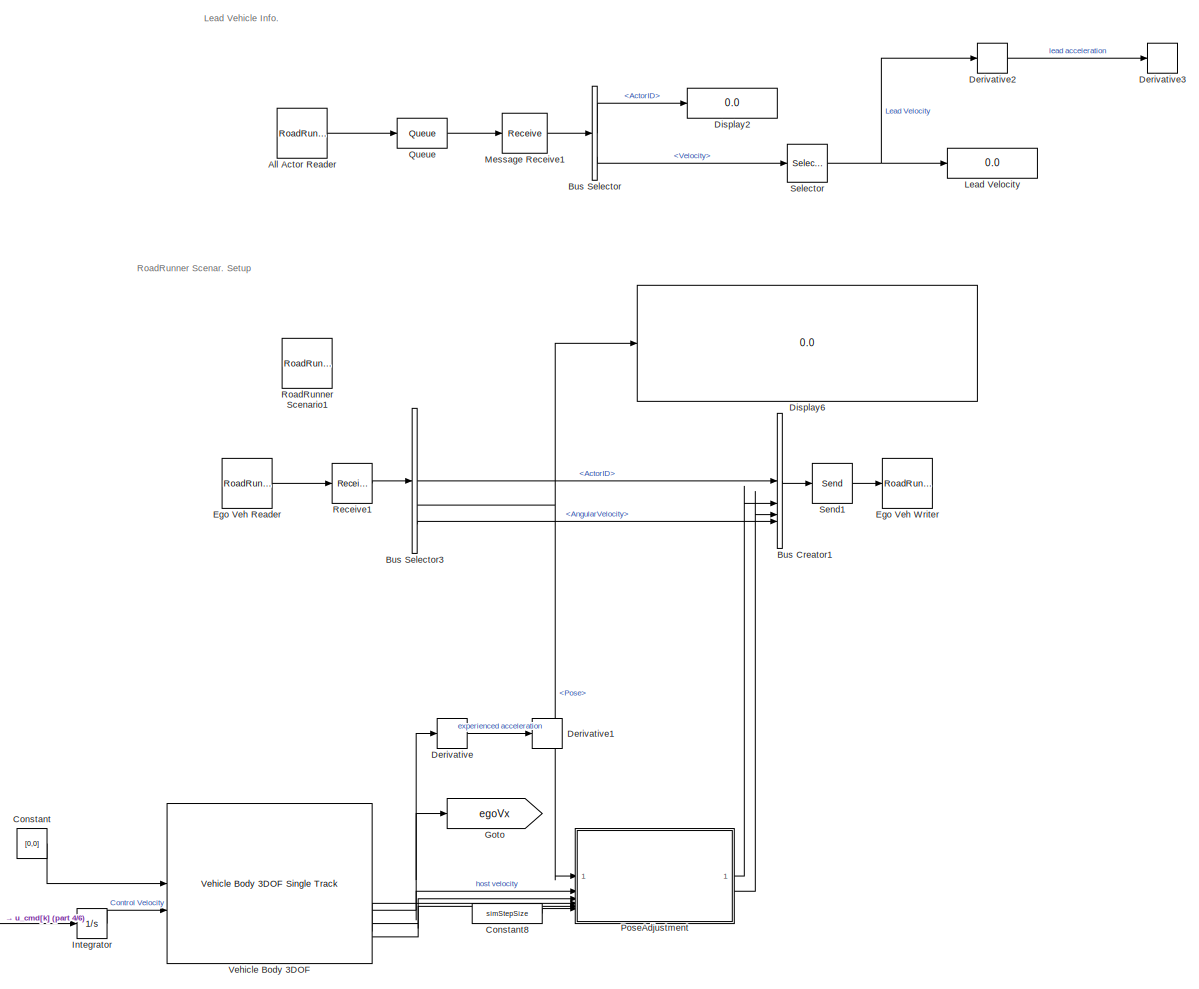
[diagram: root canvas - part 1/6, right side, full height]
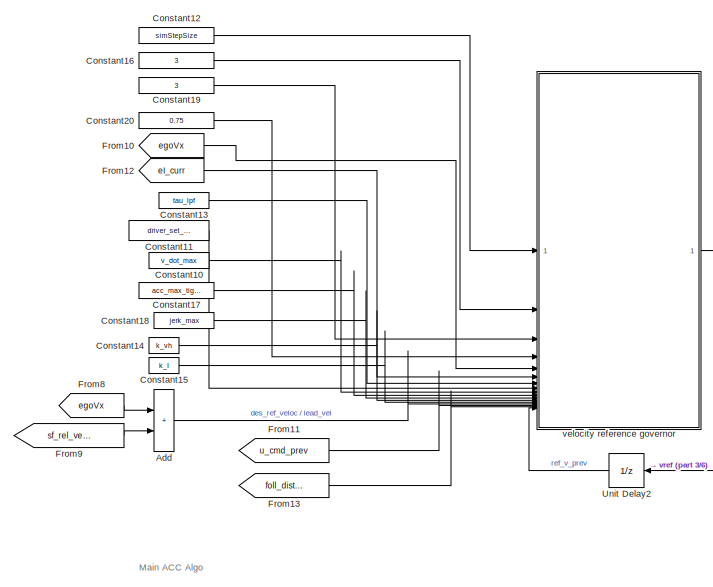
[diagram: root canvas - part 2/6, middle left region]
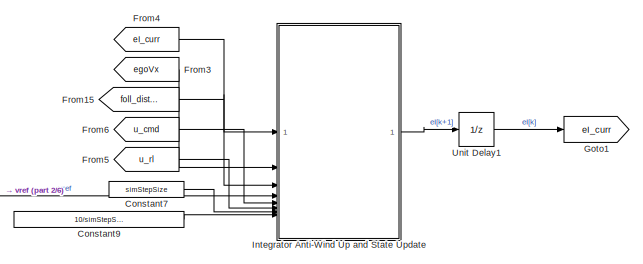
[diagram: root canvas - part 3/6, central region]
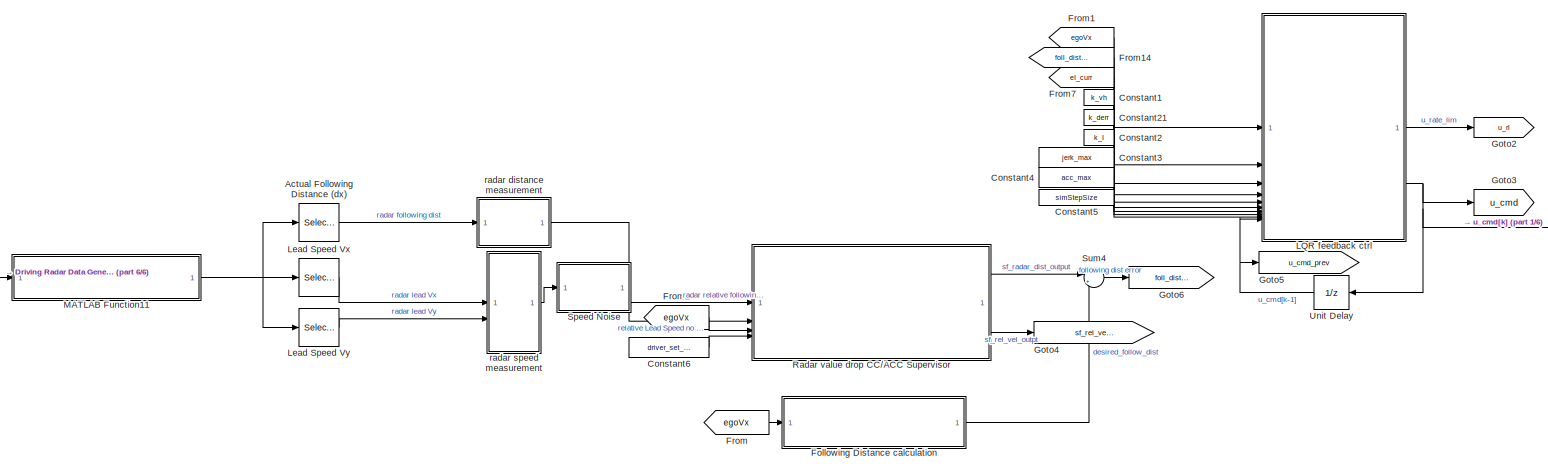
[diagram: root canvas - part 4/6, bottom center region]
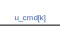
[diagram: root canvas - part 5/6, bottom center region]
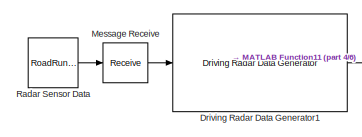
[diagram: root canvas - part 6/6, bottom left region]
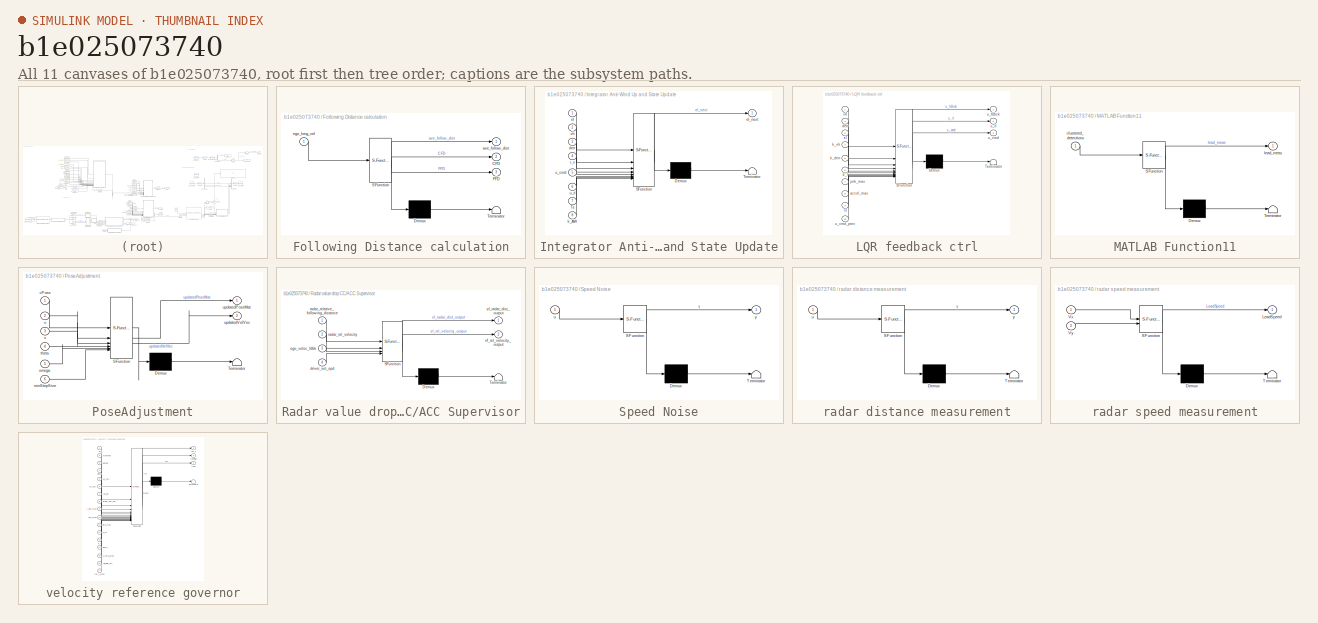
[diagram: thumbnail index - all 11 canvases of the model, root first then tree order]
MODEL slx_b1e025073740
KIND model
CONFIG AbsTol = auto
CONFIG EnableMultiTasking = off
CONFIG FixedStep = .05
CONFIG MaxStep = auto
CONFIG MinStep = auto
CONFIG RelTol = 1e-3
CONFIG SampleTimeConstraint = Unconstrained
CONFIG SolverName = FixedStepAuto
CONFIG StartTime = 0
CONFIG StopTime = 100
BLOCK [Selector] Actual Following Distance (dx)
  IndexOptions = Index vector (dialog)
  Indices = [1]
  InputPortWidth = 6
  OutputSizes = 1
BLOCK [Sum] Add
  IconShape = rectangular
BLOCK [Reference] All Actor Reader  REF=roadrunnerscenario/RoadRunner Scenario
Reader
  SourceBlock = roadrunnerscenario/RoadRunner Scenario\nReader
BLOCK [BusCreator] Bus Creator1
  DisplayOption = bar
  InheritFromInputs = off
  Inputs = 4
  NonVirtualBus = on
  OutDataTypeStr = Bus: BusActorRuntime
BLOCK [BusSelector] Bus Selector
  OutputSignals = ActorID,Pose,Velocity
BLOCK [BusSelector] Bus Selector3
  OutputSignals = ActorID,Pose,Velocity,AngularVelocity
BLOCK [Constant] Constant
  Value = [0,0]
BLOCK [Constant] Constant1
  Value = k_vh
BLOCK [Constant] Constant10
  Value = v_dot_max
BLOCK [Constant] Constant11
  Value = driver_set_speed
BLOCK [Constant] Constant12
  Value = simStepSize
BLOCK [Constant] Constant13
  Value = tau_lpf
BLOCK [Constant] Constant14
  Value = k_vh
BLOCK [Constant] Constant15
  Value = k_I
BLOCK [Constant] Constant16
  Value = 3
BLOCK [Constant] Constant17
  Value = acc_max_tight
BLOCK [Constant] Constant18
  Value = jerk_max
BLOCK [Constant] Constant19
  Value = 3
BLOCK [Constant] Constant2
  Value = k_I
BLOCK [Constant] Constant20
  Value = 0.75
BLOCK [Constant] Constant21
  Value = k_derr
BLOCK [Constant] Constant3
  Value = jerk_max
BLOCK [Constant] Constant4
  Value = acc_max
BLOCK [Constant] Constant5
  Value = simStepSize
BLOCK [Constant] Constant6
  Value = driver_set_speed
BLOCK [Constant] Constant7
  Value = simStepSize
BLOCK [Constant] Constant8
  Value = simStepSize
BLOCK [Constant] Constant9
  Value = 10/simStepSize
BLOCK [Derivative] Derivative
BLOCK [Derivative] Derivative1
BLOCK [Derivative] Derivative2
BLOCK [Derivative] Derivative3
BLOCK [Display] Display2
  Decimation = 1
BLOCK [Display] Display6
  Decimation = 1
BLOCK [Reference] Driving Radar Data Generator1  REF=drivingscenarioandsensors/Driving Radar Data Generator
  SourceBlock = drivingscenarioandsensors/Driving Radar Data Generator
  SourceType = drivingRadarDataGenerator
BLOCK [Reference] Ego Veh Reader  REF=roadrunnerscenario/RoadRunner Scenario
Reader
  SourceBlock = roadrunnerscenario/RoadRunner Scenario\nReader
BLOCK [Reference] Ego Veh Writer  REF=roadrunnerscenario/RoadRunner Scenario
Writer
  SourceBlock = roadrunnerscenario/RoadRunner Scenario\nWriter
BLOCK [SubSystem] Following Distance calculation
  ErrorFcn = Stateflow.Translate.translate
  PermitHierarchicalResolution = ExplicitOnly
  SFBlockType = MATLAB Function
  TreatAsAtomicUnit = on
BLOCK [Demux] Following Distance calculation/ Demux 
  Outputs = 1
BLOCK [S-Function] Following Distance calculation/ SFunction 
  EnableBusSupport = on
  FunctionName = sf_sfun
  PortCounts = [1 4]
  SFcnIsStateOwnerBlock = off
  SFunctionDeploymentMode = off
  Tag = Stateflow S-Function 23
BLOCK [Terminator] Following Distance calculation/ Terminator 
BLOCK [Outport] Following Distance calculation/CFD
  Port = 2
BLOCK [Outport] Following Distance calculation/FFD
  Port = 3
BLOCK [Outport] Following Distance calculation/ave_follow_dist
BLOCK [Inport] Following Distance calculation/ego_long_vel
BLOCK [From] From
  GotoTag = egoVx
BLOCK [From] From1
  GotoTag = egoVx
BLOCK [From] From10
  GotoTag = egoVx
BLOCK [From] From11
  GotoTag = u_cmd_prev
BLOCK [From] From12
  GotoTag = eI_curr
BLOCK [From] From13
  GotoTag = foll_dist_error
BLOCK [From] From14
  GotoTag = foll_dist_error
BLOCK [From] From15
  GotoTag = foll_dist_error
BLOCK [From] From2
  GotoTag = egoVx
BLOCK [From] From3
  GotoTag = egoVx
BLOCK [From] From4
  GotoTag = eI_curr
BLOCK [From] From5
  GotoTag = u_rl
BLOCK [From] From6
  GotoTag = u_cmd
BLOCK [From] From7
  GotoTag = eI_curr
BLOCK [From] From8
  GotoTag = egoVx
BLOCK [From] From9
  GotoTag = sf_rel_velocity
BLOCK [Goto] Goto
  GotoTag = egoVx
BLOCK [Goto] Goto1
  GotoTag = eI_curr
BLOCK [Goto] Goto2
  GotoTag = u_rl
BLOCK [Goto] Goto3
  GotoTag = u_cmd
BLOCK [Goto] Goto4
  GotoTag = sf_rel_velocity
BLOCK [Goto] Goto5
  GotoTag = u_cmd_prev
BLOCK [Goto] Goto6
  GotoTag = foll_dist_error
BLOCK [Integrator] Integrator
BLOCK [SubSystem] Integrator Anti-Wind Up and State Update
  ErrorFcn = Stateflow.Translate.translate
  PermitHierarchicalResolution = ExplicitOnly
  SFBlockType = MATLAB Function
  TreatAsAtomicUnit = on
BLOCK [Demux] Integrator Anti-Wind Up and State Update/ Demux 
  Outputs = 1
BLOCK [S-Function] Integrator Anti-Wind Up and State Update/ SFunction 
  EnableBusSupport = on
  FunctionName = sf_sfun
  PortCounts = [8 2]
  SFcnIsStateOwnerBlock = off
  SFunctionDeploymentMode = off
  Tag = Stateflow S-Function 1
BLOCK [Terminator] Integrator Anti-Wind Up and State Update/ Terminator 
BLOCK [Inport] Integrator Anti-Wind Up and State Update/Ts
  Port = 7
BLOCK [Inport] Integrator Anti-Wind Up and State Update/derr
  Port = 3
BLOCK [Inport] Integrator Anti-Wind Up and State Update/eI
BLOCK [Outport] Integrator Anti-Wind Up and State Update/eI_next
BLOCK [Inport] Integrator Anti-Wind Up and State Update/k_AW
  Port = 8
BLOCK [Inport] Integrator Anti-Wind Up and State Update/r_v
  Port = 4
BLOCK [Inport] Integrator Anti-Wind Up and State Update/u_cmd
  Port = 5
BLOCK [Inport] Integrator Anti-Wind Up and State Update/u_rl
  Port = 6
BLOCK [Inport] Integrator Anti-Wind Up and State Update/vh
  Port = 2
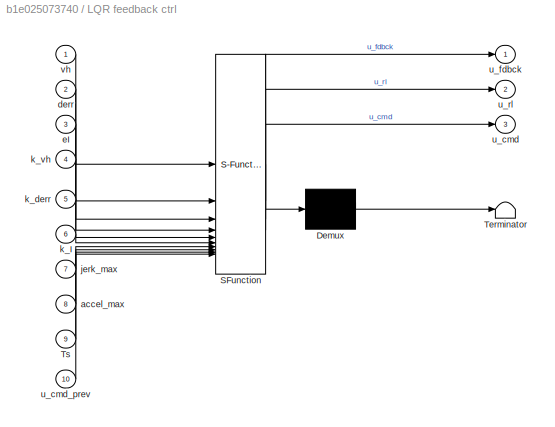
BLOCK [SubSystem] LQR feedback ctrl
  ErrorFcn = Stateflow.Translate.translate
  PermitHierarchicalResolution = ExplicitOnly
  SFBlockType = MATLAB Function
  TreatAsAtomicUnit = on
BLOCK [Demux] LQR feedback ctrl/ Demux 
  Outputs = 1
BLOCK [S-Function] LQR feedback ctrl/ SFunction 
  EnableBusSupport = on
  FunctionName = sf_sfun
  PortCounts = [10 4]
  SFcnIsStateOwnerBlock = off
  SFunctionDeploymentMode = off
  Tag = Stateflow S-Function 2
BLOCK [Terminator] LQR feedback ctrl/ Terminator 
BLOCK [Inport] LQR feedback ctrl/Ts
  Port = 9
BLOCK [Inport] LQR feedback ctrl/accel_max
  Port = 8
BLOCK [Inport] LQR feedback ctrl/derr
  Port = 2
BLOCK [Inport] LQR feedback ctrl/eI
  Port = 3
BLOCK [Inport] LQR feedback ctrl/jerk_max
  Port = 7
BLOCK [Inport] LQR feedback ctrl/k_I
  Port = 6
BLOCK [Inport] LQR feedback ctrl/k_derr
  Port = 5
BLOCK [Inport] LQR feedback ctrl/k_vh
  Port = 4
BLOCK [Outport] LQR feedback ctrl/u_cmd
  Port = 3
BLOCK [Inport] LQR feedback ctrl/u_cmd_prev
  Port = 10
BLOCK [Outport] LQR feedback ctrl/u_fdbck
BLOCK [Outport] LQR feedback ctrl/u_rl
  Port = 2
BLOCK [Inport] LQR feedback ctrl/vh
BLOCK [Selector] Lead Speed Vx
  IndexOptions = Index vector (dialog)
  Indices = 4
  InputPortWidth = 6
  OutputSizes = 1
BLOCK [Selector] Lead Speed Vy
  IndexOptions = Index vector (dialog)
  Indices = 5
  InputPortWidth = 6
  NameLocation = top
  OutputSizes = 1
BLOCK [Display] Lead Velocity
  Decimation = 1
BLOCK [SubSystem] MATLAB Function11
  ErrorFcn = Stateflow.Translate.translate
  PermitHierarchicalResolution = ExplicitOnly
  SFBlockType = MATLAB Function
  TreatAsAtomicUnit = on
BLOCK [Demux] MATLAB Function11/ Demux 
  Outputs = 1
BLOCK [S-Function] MATLAB Function11/ SFunction 
  EnableBusSupport = on
  FunctionName = sf_sfun
  PortCounts = [1 2]
  SFcnIsStateOwnerBlock = off
  SFunctionDeploymentMode = off
  Tag = Stateflow S-Function 22
BLOCK [Terminator] MATLAB Function11/ Terminator 
BLOCK [Inport] MATLAB Function11/clustered_detections
BLOCK [Outport] MATLAB Function11/lead_meas
BLOCK [Receive] Message Receive
  InputPortMap = u0
  InputPortMessageModes = m
  OutputPortMap = o1
  UseInternalQueue = off
BLOCK [Receive] Message Receive1
  InputPortMap = u0
  InputPortMessageModes = m
  OutputPortMap = o1
BLOCK [SubSystem] PoseAdjustment
  ErrorFcn = Stateflow.Translate.translate
  PermitHierarchicalResolution = ExplicitOnly
  SFBlockType = MATLAB Function
  TreatAsAtomicUnit = on
BLOCK [Demux] PoseAdjustment/ Demux 
  Outputs = 1
BLOCK [S-Function] PoseAdjustment/ SFunction 
  EnableBusSupport = on
  FunctionName = sf_sfun
  PortCounts = [6 3]
  SFcnIsStateOwnerBlock = off
  SFunctionDeploymentMode = off
  Tag = Stateflow S-Function 12
BLOCK [Terminator] PoseAdjustment/ Terminator 
BLOCK [Inport] PoseAdjustment/cPose
BLOCK [Inport] PoseAdjustment/omega
  Port = 5
BLOCK [Inport] PoseAdjustment/simStepSize
  Port = 6
BLOCK [Inport] PoseAdjustment/theta
  Port = 4
BLOCK [Inport] PoseAdjustment/u
  Port = 2
BLOCK [Outport] PoseAdjustment/updatedPoseMat
BLOCK [Outport] PoseAdjustment/updatedVelVec
  Port = 2
BLOCK [Inport] PoseAdjustment/v
  Port = 3
BLOCK [Queue] Queue
  Capacity = 16
  InputPortMap = u0
  InputPortMessageModes = m
  OutputPortMap = o5
  OutputPortMessageModes = m
  OverwriteOldest = on
  QueueType = LIFO
BLOCK [Reference] Radar Sensor Data  REF=roadrunnerscenario/RoadRunner Scenario
Reader
  SourceBlock = roadrunnerscenario/RoadRunner Scenario\nReader
BLOCK [SubSystem] Radar value drop CC//ACC Supervisor
  ErrorFcn = Stateflow.Translate.translate
  PermitHierarchicalResolution = ExplicitOnly
  SFBlockType = Chart
  TreatAsAtomicUnit = on
BLOCK [Demux] Radar value drop CC//ACC Supervisor/ Demux 
  Outputs = 1
BLOCK [S-Function] Radar value drop CC//ACC Supervisor/ SFunction 
  EnableBusSupport = on
  FunctionName = sf_sfun
  PortCounts = [4 3]
  SFcnIsStateOwnerBlock = off
  SFunctionDeploymentMode = off
  Tag = Stateflow S-Function 3
BLOCK [Terminator] Radar value drop CC//ACC Supervisor/ Terminator 
BLOCK [Inport] Radar value drop CC//ACC Supervisor/driver_set_spd
  Port = 4
BLOCK [Inport] Radar value drop CC//ACC Supervisor/ego_veloc_fdbk
  Port = 3
BLOCK [Inport] Radar value drop CC//ACC Supervisor/radar_rel_velocity
  Port = 2
BLOCK [Inport] Radar value drop CC//ACC Supervisor/radar_relative_following_distance
BLOCK [Outport] Radar value drop CC//ACC Supervisor/sf_radar_dist_output
BLOCK [Outport] Radar value drop CC//ACC Supervisor/sf_rel_velocity_output
  Port = 2
BLOCK [Receive] Receive1
  InputPortMap = u0
  InputPortMessageModes = m
  OutputPortMap = o1
  QueueLength = 1
  QueueOverwriting = on
  QueueType = LIFO
  UseInternalQueue = off
BLOCK [Reference] RoadRunner Scenario1  REF=roadrunnerscenario/RoadRunner Scenario
  SourceBlock = roadrunnerscenario/RoadRunner Scenario
BLOCK [Selector] Selector
  IndexOptions = Index vector (dialog)
  Indices = [2]
  InputPortWidth = 3
  OutputSizes = 1
BLOCK [Send] Send1
  InputPortMap = u1
  OutputPortMessageModes = m
BLOCK [SubSystem] Speed Noise
  ErrorFcn = Stateflow.Translate.translate
  PermitHierarchicalResolution = ExplicitOnly
  SFBlockType = MATLAB Function
  TreatAsAtomicUnit = on
BLOCK [Demux] Speed Noise/ Demux 
  Outputs = 1
BLOCK [S-Function] Speed Noise/ SFunction 
  EnableBusSupport = on
  FunctionName = sf_sfun
  PortCounts = [1 2]
  SFcnIsStateOwnerBlock = off
  SFunctionDeploymentMode = off
  Tag = Stateflow S-Function 15
BLOCK [Terminator] Speed Noise/ Terminator 
BLOCK [Inport] Speed Noise/u
BLOCK [Outport] Speed Noise/y
BLOCK [Sum] Sum4
  Inputs = |+-
BLOCK [UnitDelay] Unit Delay
  HasFrameUpgradeWarning = on
  SampleTime = -1
BLOCK [UnitDelay] Unit Delay1
  HasFrameUpgradeWarning = on
  SampleTime = -1
BLOCK [UnitDelay] Unit Delay2
  HasFrameUpgradeWarning = on
  SampleTime = -1
BLOCK [Reference] Vehicle Body 3DOF   REF=autolibshared/Vehicle Body 3DOF Single Track
  LibrarySourceBlock = vehdynlibeom/Vehicle Body 3DOF Single Track
  SourceBlock = autolibshared/Vehicle Body 3DOF Single Track
  SourceType = Vehicle Body 3DOF Lateral
BLOCK [SubSystem] radar distance measurement
  ErrorFcn = Stateflow.Translate.translate
  PermitHierarchicalResolution = ExplicitOnly
  SFBlockType = MATLAB Function
  TreatAsAtomicUnit = on
BLOCK [Demux] radar distance measurement/ Demux 
  Outputs = 1
BLOCK [S-Function] radar distance measurement/ SFunction 
  EnableBusSupport = on
  FunctionName = sf_sfun
  PortCounts = [1 2]
  SFcnIsStateOwnerBlock = off
  SFunctionDeploymentMode = off
  Tag = Stateflow S-Function 13
BLOCK [Terminator] radar distance measurement/ Terminator 
BLOCK [Inport] radar distance measurement/u
BLOCK [Outport] radar distance measurement/y
BLOCK [SubSystem] radar speed measurement
  ErrorFcn = Stateflow.Translate.translate
  PermitHierarchicalResolution = ExplicitOnly
  SFBlockType = MATLAB Function
  TreatAsAtomicUnit = on
BLOCK [Demux] radar speed measurement/ Demux 
  Outputs = 1
BLOCK [S-Function] radar speed measurement/ SFunction 
  EnableBusSupport = on
  FunctionName = sf_sfun
  PortCounts = [2 2]
  SFcnIsStateOwnerBlock = off
  SFunctionDeploymentMode = off
  Tag = Stateflow S-Function 14
BLOCK [Terminator] radar speed measurement/ Terminator 
BLOCK [Outport] radar speed measurement/LeadSpeed
BLOCK [Inport] radar speed measurement/Vx
BLOCK [Inport] radar speed measurement/Vy
  Port = 2
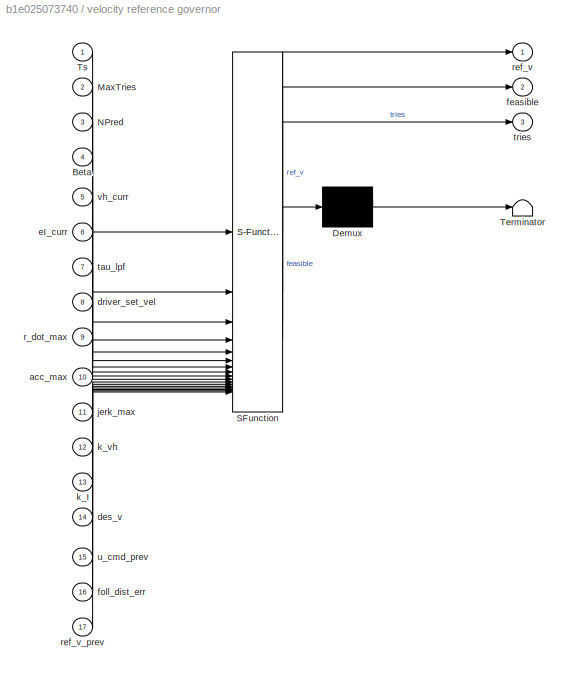
BLOCK [SubSystem] velocity reference governor
  ErrorFcn = Stateflow.Translate.translate
  PermitHierarchicalResolution = ExplicitOnly
  SFBlockType = MATLAB Function
  SystemSampleTime = simStepSize
  TreatAsAtomicUnit = on
BLOCK [Demux] velocity reference governor/ Demux 
  Outputs = 1
BLOCK [S-Function] velocity reference governor/ SFunction 
  EnableBusSupport = on
  FunctionName = sf_sfun
  PortCounts = [17 4]
  SFcnIsStateOwnerBlock = off
  SFunctionDeploymentMode = off
  Tag = Stateflow S-Function 4
BLOCK [Terminator] velocity reference governor/ Terminator 
BLOCK [Inport] velocity reference governor/Beta
  Port = 4
BLOCK [Inport] velocity reference governor/MaxTries
  Port = 2
BLOCK [Inport] velocity reference governor/NPred
  Port = 3
BLOCK [Inport] velocity reference governor/Ts
BLOCK [Inport] velocity reference governor/acc_max
  Port = 10
BLOCK [Inport] velocity reference governor/des_v
  Port = 14
BLOCK [Inport] velocity reference governor/driver_set_vel
  Port = 8
BLOCK [Inport] velocity reference governor/eI_curr
  Port = 6
BLOCK [Outport] velocity reference governor/feasible
  Port = 2
BLOCK [Inport] velocity reference governor/foll_dist_err
  Port = 16
BLOCK [Inport] velocity reference governor/jerk_max
  Port = 11
BLOCK [Inport] velocity reference governor/k_I
  Port = 13
BLOCK [Inport] velocity reference governor/k_vh
  Port = 12
BLOCK [Inport] velocity reference governor/r_dot_max
  Port = 9
BLOCK [Outport] velocity reference governor/ref_v
BLOCK [Inport] velocity reference governor/ref_v_prev
  Port = 17
BLOCK [Inport] velocity reference governor/tau_lpf
  Port = 7
BLOCK [Outport] velocity reference governor/tries
  Port = 3
BLOCK [Inport] velocity reference governor/u_cmd_prev
  Port = 15
BLOCK [Inport] velocity reference governor/vh_curr
  Port = 5
ANNOTATION (root): Lead Vehicle Info.
ANNOTATION (root): Main ACC Algo
ANNOTATION (root): RoadRunner Scenar. Setup
LINE Actual Following Distance (dx):1 -> radar distance measurement:1
LINE Add:1 -> velocity reference governor:14
LINE All Actor Reader:1 -> Queue:1
LINE Bus Creator1:1 -> Send1:1
LINE Bus Selector3:1 -> Bus Creator1:1
NET Bus Selector3:2 -> Display6:1, PoseAdjustment:1
LINE Bus Selector3:4 -> Bus Creator1:4
LINE Bus Selector:1 -> Display2:1
LINE Bus Selector:3 -> Selector:1
LINE Constant10:1 -> velocity reference governor:9
LINE Constant11:1 -> velocity reference governor:8
LINE Constant12:1 -> velocity reference governor:1
LINE Constant13:1 -> velocity reference governor:7
LINE Constant14:1 -> velocity reference governor:12
LINE Constant15:1 -> velocity reference governor:13
LINE Constant16:1 -> velocity reference governor:2
LINE Constant17:1 -> velocity reference governor:10
LINE Constant18:1 -> velocity reference governor:11
LINE Constant19:1 -> velocity reference governor:3
LINE Constant1:1 -> LQR feedback ctrl:4
LINE Constant20:1 -> velocity reference governor:4
LINE Constant21:1 -> LQR feedback ctrl:5
LINE Constant2:1 -> LQR feedback ctrl:6
LINE Constant3:1 -> LQR feedback ctrl:7
LINE Constant4:1 -> LQR feedback ctrl:8
LINE Constant5:1 -> LQR feedback ctrl:9
LINE Constant6:1 -> Radar value drop CC//ACC Supervisor:4
LINE Constant7:1 -> Integrator Anti-Wind Up and State Update:7
LINE Constant8:1 -> PoseAdjustment:6
LINE Constant9:1 -> Integrator Anti-Wind Up and State Update:8
LINE Constant:1 -> Vehicle Body 3DOF :1
LINE Derivative2:1 -> Derivative3:1
LINE Derivative:1 -> Derivative1:1
LINE Driving Radar Data Generator1:1 -> MATLAB Function11:1
LINE Ego Veh Reader:1 -> Receive1:1
LINE Following Distance calculation:1 -> Sum4:2
LINE From10:1 -> velocity reference governor:5
LINE From11:1 -> velocity reference governor:15
LINE From12:1 -> velocity reference governor:6
LINE From13:1 -> velocity reference governor:16
LINE From14:1 -> LQR feedback ctrl:2
LINE From15:1 -> Integrator Anti-Wind Up and State Update:3
LINE From1:1 -> LQR feedback ctrl:1
LINE From2:1 -> Radar value drop CC//ACC Supervisor:3
LINE From3:1 -> Integrator Anti-Wind Up and State Update:2
LINE From4:1 -> Integrator Anti-Wind Up and State Update:1
LINE From5:1 -> Integrator Anti-Wind Up and State Update:6
LINE From6:1 -> Integrator Anti-Wind Up and State Update:5
LINE From7:1 -> LQR feedback ctrl:3
LINE From8:1 -> Add:1
LINE From9:1 -> Add:2
LINE From:1 -> Following Distance calculation:1
LINE Integrator Anti-Wind Up and State Update:1 -> Unit Delay1:1
LINE Integrator:1 -> Vehicle Body 3DOF :2
LINE LQR feedback ctrl:2 -> Goto2:1
NET LQR feedback ctrl:3 -> Goto3:1, Integrator:1, Unit Delay:1
LINE Lead Speed Vx:1 -> radar speed measurement:1
LINE Lead Speed Vy:1 -> radar speed measurement:2
NET MATLAB Function11:1 -> Actual Following Distance (dx):1, Lead Speed Vx:1, Lead Speed Vy:1
LINE Message Receive1:1 -> Bus Selector:1
LINE Message Receive:1 -> Driving Radar Data Generator1:1
LINE PoseAdjustment:1 -> Bus Creator1:2
LINE PoseAdjustment:2 -> Bus Creator1:3
LINE Queue:1 -> Message Receive1:1
LINE Radar Sensor Data:1 -> Message Receive:1
LINE Radar value drop CC//ACC Supervisor:1 -> Sum4:1
LINE Radar value drop CC//ACC Supervisor:2 -> Goto4:1
LINE Receive1:1 -> Bus Selector3:1
NET Selector:1 -> Derivative2:1, Lead Velocity:1
LINE Send1:1 -> Ego Veh Writer:1
LINE Speed Noise:1 -> Radar value drop CC//ACC Supervisor:2
LINE Sum4:1 -> Goto6:1
LINE Unit Delay1:1 -> Goto1:1
LINE Unit Delay2:1 -> velocity reference governor:17
NET Unit Delay:1 -> Goto5:1, LQR feedback ctrl:10
NET Vehicle Body 3DOF :2 -> Derivative:1, Goto:1, PoseAdjustment:2
LINE Vehicle Body 3DOF :3 -> PoseAdjustment:3
LINE Vehicle Body 3DOF :4 -> PoseAdjustment:4
LINE Vehicle Body 3DOF :5 -> PoseAdjustment:5
LINE radar distance measurement:1 -> Radar value drop CC//ACC Supervisor:1
LINE radar speed measurement:1 -> Speed Noise:1
NET velocity reference governor:1 -> Integrator Anti-Wind Up and State Update:4, Unit Delay2:1
note: NET lines group one-source signal fan-out (src -> all destinations, sorted); 1:1 wires keep LINE
CHART PoseAdjustment states=1 transitions=1
  STATE_LABEL 'eML_blk_kernel()'
  STATE_LABEL 'SCRIPT:\nfunction [updatedPoseMat, updatedVelVec] = RRPoseAdjustment(cPose, u, v, theta, omega, simStepSize)\n    thetad = theta + omega*simStepSize;\n    xd = (u*cos(theta) - v*sin(theta))*simStepSize;\n    yd = (u*sin(theta) + v*cos(theta))*simStepSize;\n    pose_mat = [cos(-thetad) -sin(-thetad) 0 (yd+cPose(1,4)); sin(-thetad) cos(-thetad) 0 (xd+cPose(2,4)); 0 0 1 0; 0 0 0 1];\n    updatedPoseMat = p...<+108ch>'
CHART radar distance measurement states=1 transitions=1
  STATE_LABEL 'eML_blk_kernel()'
  STATE_LABEL 'SCRIPT:\nfunction y = removeSpikes(u)\n\n    persistent buffer;\n    persistent bufferIndex;\n    threshold = 2;\n    % windowSize = 15;\n    windowSize = 5;\n    \n    if isempty(buffer)\n        buffer = zeros(1, windowSize);\n        bufferIndex = 1;\n    end\n    \n    % Update buffer with new value\n    buffer(bufferIndex) = u;\n    bufferIndex = mod(bufferIndex, windowSize) + 1;\n    \n    % Calculate the med...<+257ch>'
CHART radar speed measurement states=1 transitions=1
  STATE_LABEL 'eML_blk_kernel()'
  STATE_LABEL 'SCRIPT:\nfunction LeadSpeed = fcn(Vx, Vy)\n\nif Vx == 0 && Vy == 0 \n    Vx = 0.01;\n    Vy = 0.01;\nelseif Vy == 0\n    Vy = 0.01;\nelseif Vx == 0\n    Vx = 0.01;\nend\n\nif Vx <= 0\n    LeadSpeed = -sqrt(Vx^2 + Vy^2);\nelse\n    LeadSpeed = sqrt(Vx^2 + Vy^2);\nend\n\n'
CHART Speed Noise states=1 transitions=1
  STATE_LABEL 'eML_blk_kernel()'
  STATE_LABEL 'SCRIPT:\nfunction y = removeSpikes(u)\n    % removeSpikes - Removes spikes from a scalar signal based on a threshold\n    %\n    % Inputs:\n    %    u - The input signal (scalar)\n    %    threshold - The threshold value to detect spikes\n    %    windowSize - The size of the window for calculating the median\n    %\n    % Outputs:\n    %    y - The filtered signal with spikes removed\n\n    % Declare persist...<+655ch>'
CHART MATLAB Function11 states=1 transitions=1
  STATE_LABEL 'eML_blk_kernel()'
  STATE_LABEL 'SCRIPT:\nfunction lead_meas = fcn(clustered_detections)\n\nlead_det = clustered_detections.Detections(1);\nlead_meas = lead_det.Measurement;\n\n% relative_dist = sqrt(lead_det.Measurement(1)^2 + lead_det.Measurement(2)^2); % rel_dist = sqrt(x^2+y^2)\n% relative_speed = sqrt(lead_det.Measurement(4)^2 + lead_det.Measurement(5)^2);\nend'
CHART Following Distance calculation states=1 transitions=1
  STATE_LABEL 'eML_blk_kernel()'
  STATE_LABEL "SCRIPT:\n% Function to determine the closest (CFD) and furthest follow distance (FFD) for the\n% ego vehicle relative to the lead vehicle given the ego vehicle's current\n% velocity\n\n% This function outputs the middle distance value between the CFD and FFD\n% and those values respectively as well\n\nfunction [ave_follow_dist, CFD, FFD] = fcn(ego_long_vel)\n    persistent dist_history window_size smoothin...<+1248ch>"
CHART Integrator Anti-Wind Up and State Update states=1 transitions=1
  STATE_LABEL 'eML_blk_kernel()'
  STATE_LABEL 'SCRIPT:\nfunction eI_next  = integrator_update(eI, vh, derr, r_v, u_cmd, u_rl, Ts, k_AW)\n\n% This function block takes in the current integrator state eI[k], as well\n% as u_cmd and u_rl to perform Anti-Wind up with back calculation on the\n% integrator due to control signal saturation; k_AW is integrator back calculation gain\neI = eI + k_AW*(u_cmd - u_rl)*Ts; % Bleeding integrator state at current ti...<+292ch>'
CHART LQR feedback ctrl states=1 transitions=1
  STATE_LABEL 'eML_blk_kernel()'
  STATE_LABEL 'SCRIPT:\nfunction [u_fdbck, u_rl, u_cmd] = LQR_fdbck(vh, derr, eI, k_vh, k_derr, k_I, jerk_max, accel_max, Ts, u_cmd_prev)\n% \n% This takes in the current host velocity and integrator states, LQR gains for velocity and integrator states, as well as jerk and acceleration limits to generate final control signal\n\n% u_fdbck is the feedback control acceleration from the control law u = -k_x * x - k_I * e...<+390ch>'
CHART Radar value drop CC//ACC Supervisor states=3 transitions=3
  STATE_LABEL 'Radar_State_Lead_Veh_Present_and_Detected\n\nsf_radar_dist_output = radar_relative_following_distance;\nsf_rel_velocity_output = radar_rel_velocity;\ncounter = counter + 1; % updates by 1 every time step; to wait to give the radar time to initialize in simulation\n'
  STATE_LABEL 'filtered_val = smooth_switch(prev_val, curr_val, dt, tau)'
  STATE_LABEL 'SCRIPT:\nfunction filtered_val = smooth_switch(prev_val, curr_val, dt, tau)\n% Smooth transition from prev_val toward curr_val\n% dt  = sample time [s]; equal to system sample time of 0.05s currently\n% tau = time constant [s] (0.3–1.0 typical)\n\nif isempty(prev_val)\n    prev_val = 0;\nend\n\nalpha = exp(-dt/tau);\nfiltered_val = alpha*prev_val + (1-alpha)*curr_val;\nend'
  STATE_LABEL 'Output_Spoof_To_Keep_Moving\n\nsf_radar_dist_output = 150;\n% sf_radar_dist_output = smooth_switch(sf_radar_dist_output, 150, 0.05, 2);\nset_spd_err = driver_set_spd - ego_veloc_fdbk;\nsf_rel_velocity_output = set_spd_err;\n% sf_rel_velocity_output = smooth_switch(sf_rel_velocity_output, set_spd_err, 0.05, 5);'
CHART velocity reference governor states=1 transitions=1
  STATE_LABEL 'eML_blk_kernel()'
  STATE_LABEL 'SCRIPT:\nfunction [ref_v, feasible, tries] = ref_gov(Ts, MaxTries, NPred, Beta, vh_curr, eI_curr, tau_lpf, driver_set_vel, r_dot_max, acc_max, jerk_max, k_vh, k_I, des_v, u_cmd_prev, foll_dist_err, ref_v_prev)\n% generates the reference velocity signal for the integrator to track,\n% generates velocity by predicting closed loop performance over a moving\n% window of ~N=3 timesteps; Generated velocity ...<+3608ch>'
CHART  states=0 transitions=0
CHART  states=0 transitions=0
CHART  states=0 transitions=0
CHART  states=0 transitions=0
CHART  states=0 transitions=0
CHART  states=0 transitions=0
CHART  states=0 transitions=0
CHART  states=0 transitions=0
CHART  states=0 transitions=0
CHART  states=0 transitions=0
